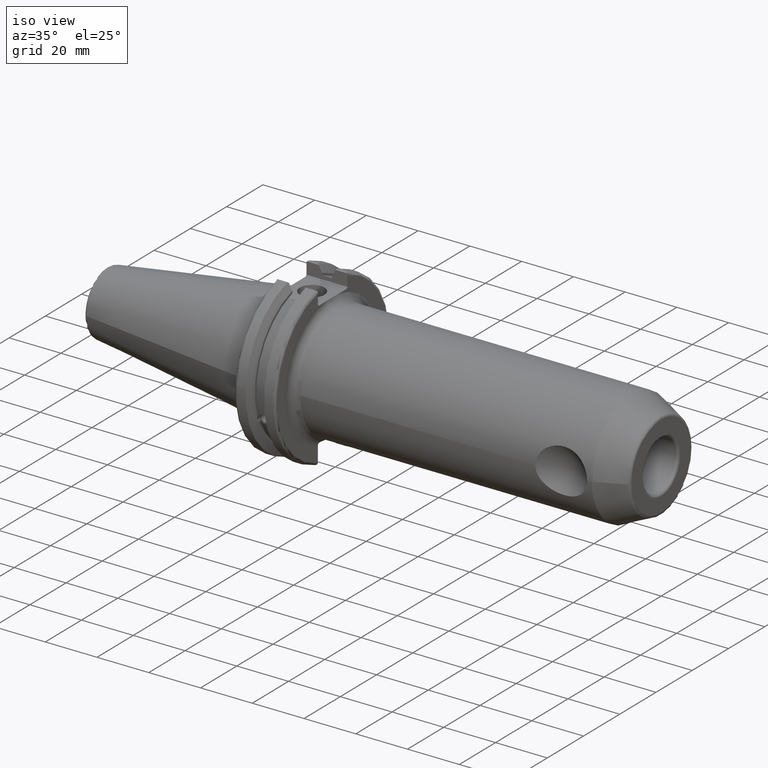
[diagram: clean part render]
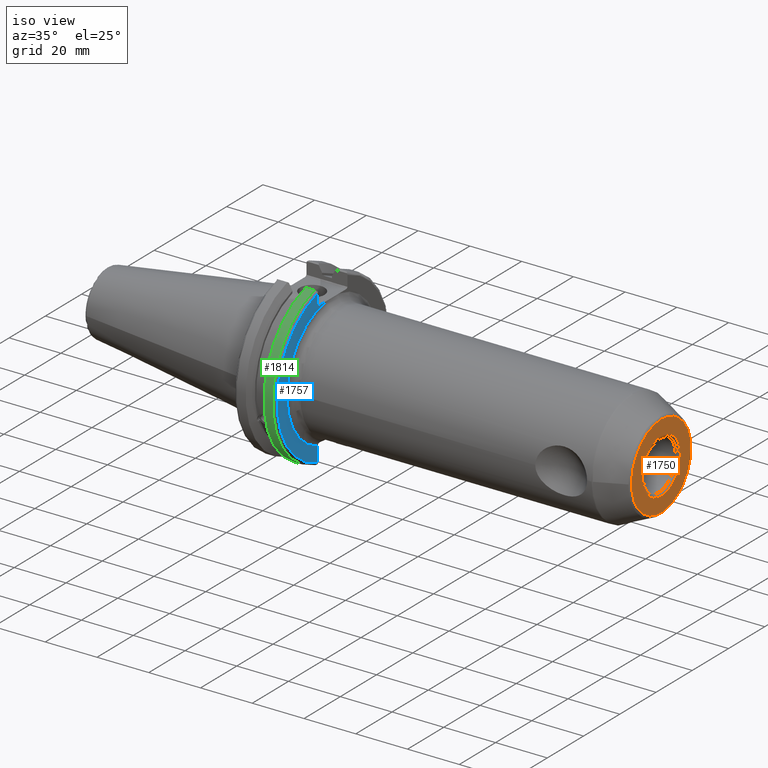
[diagram: same view with three faces highlighted in distinct colors, each labeled with its STEP entity id]
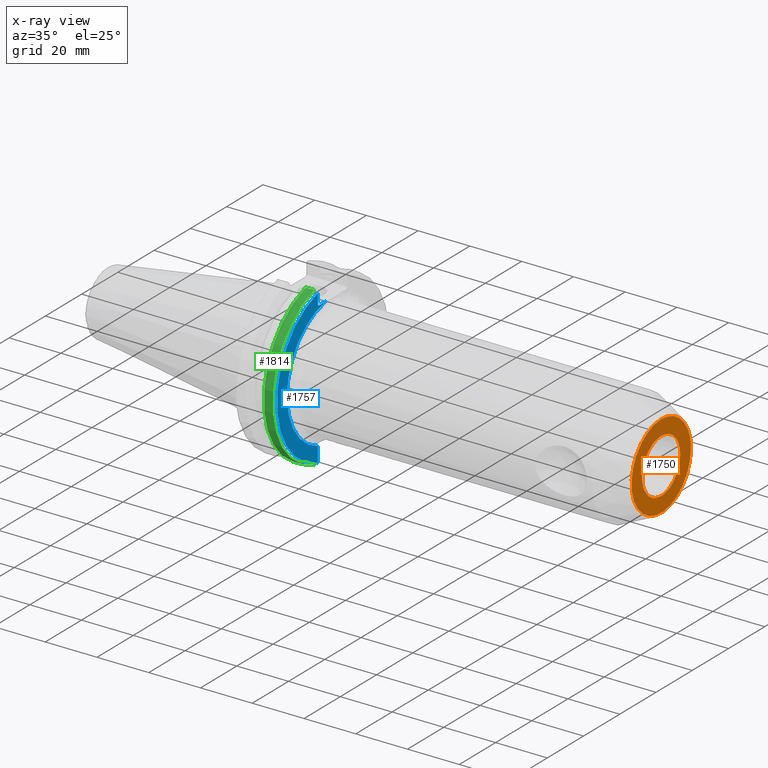
[diagram: x-ray of the same camera — body ghosted, the three highlighted faces saturated]
A machine part, iso view with three faces highlighted in distinct colors.
The next image is the same camera in x-ray (body ghosted, the three faces saturated) — at least one of them is partly hidden behind the body in this view.
Their STEP definitions:

[orange] entity #1750 — the highlighted planar face has unit normal (1, 0, 0).
#49=FACE_BOUND('',#550,.T.);
#307=CIRCLE('',#1870,10.525);
#308=CIRCLE('',#1871,10.525);
#310=CIRCLE('',#1874,16.3629297391925);
#311=CIRCLE('',#1875,16.3629297391925);
#414=PLANE('',#1873);
#458=FACE_OUTER_BOUND('',#549,.T.);
#549=EDGE_LOOP('',(#1207,#1208));
#550=EDGE_LOOP('',(#1209,#1210));
#709=VERTEX_POINT('',#2778);
#710=VERTEX_POINT('',#2780);
#711=VERTEX_POINT('',#2785);
#712=VERTEX_POINT('',#2786);
#912=EDGE_CURVE('',#709,#710,#307,.T.);
#913=EDGE_CURVE('',#710,#709,#308,.T.);
#915=EDGE_CURVE('',#711,#712,#310,.T.);
#916=EDGE_CURVE('',#712,#711,#311,.T.);
#1207=ORIENTED_EDGE('',*,*,#915,.F.);
#1208=ORIENTED_EDGE('',*,*,#916,.F.);
#1209=ORIENTED_EDGE('',*,*,#913,.F.);
#1210=ORIENTED_EDGE('',*,*,#912,.F.);
#1750=ADVANCED_FACE('',(#458,#49),#414,.T.);
#1870=AXIS2_PLACEMENT_3D('',#2781,#2112,#2113);
#1871=AXIS2_PLACEMENT_3D('',#2782,#2114,#2115);
#1873=AXIS2_PLACEMENT_3D('',#2784,#2118,#2119);
#1874=AXIS2_PLACEMENT_3D('',#2787,#2120,#2121);
#1875=AXIS2_PLACEMENT_3D('',#2788,#2122,#2123);
#2112=DIRECTION('center_axis',(1.,0.,0.));
#2113=DIRECTION('ref_axis',(0.,-1.,1.83697019872103E-16));
#2114=DIRECTION('center_axis',(1.,0.,0.));
#2115=DIRECTION('ref_axis',(0.,-1.,1.83697019872103E-16));
#2118=DIRECTION('center_axis',(1.,0.,0.));
#2119=DIRECTION('ref_axis',(0.,0.,-1.));
#2120=DIRECTION('center_axis',(-1.,0.,0.));
#2121=DIRECTION('ref_axis',(0.,-1.,1.83697019872103E-16));
#2122=DIRECTION('center_axis',(-1.,0.,0.));
#2123=DIRECTION('ref_axis',(0.,-1.,1.83697019872103E-16));
#2778=CARTESIAN_POINT('',(146.,-1.28894075610259E-15,10.525));
#2780=CARTESIAN_POINT('',(146.,10.525,-6.44470378051295E-16));
#2781=CARTESIAN_POINT('Origin',(146.,0.,0.));
#2782=CARTESIAN_POINT('Origin',(146.,0.,0.));
#2784=CARTESIAN_POINT('Origin',(146.,9.52500000000001,0.));
#2785=CARTESIAN_POINT('',(146.,16.3629297391925,-5.00970238244378E-15));
#2786=CARTESIAN_POINT('',(146.,-2.00388095297751E-15,16.3629297391925));
#2787=CARTESIAN_POINT('Origin',(146.,0.,0.));
#2788=CARTESIAN_POINT('Origin',(146.,0.,0.));

[blue] entity #1757 — the highlighted planar face has unit normal (1, 0, 0).
#94=LINE('',#2889,#185);
#95=LINE('',#2891,#186);
#96=LINE('',#2893,#187);
#97=LINE('',#2896,#188);
#185=VECTOR('',#2180,10.);
#186=VECTOR('',#2181,10.);
#187=VECTOR('',#2182,10.);
#188=VECTOR('',#2185,10.);
#330=CIRCLE('',#1900,25.225);
#331=CIRCLE('',#1902,30.75);
#415=PLANE('',#1901);
#465=FACE_OUTER_BOUND('',#559,.T.);
#559=EDGE_LOOP('',(#1272,#1273,#1274,#1275,#1276,#1277));
#732=VERTEX_POINT('',#2854);
#733=VERTEX_POINT('',#2865);
#736=VERTEX_POINT('',#2888);
#737=VERTEX_POINT('',#2890);
#738=VERTEX_POINT('',#2892);
#739=VERTEX_POINT('',#2894);
#943=EDGE_CURVE('',#732,#733,#330,.T.);
#947=EDGE_CURVE('',#732,#736,#94,.T.);
#948=EDGE_CURVE('',#737,#736,#95,.T.);
#949=EDGE_CURVE('',#737,#738,#96,.T.);
#950=EDGE_CURVE('',#739,#738,#331,.T.);
#951=EDGE_CURVE('',#739,#733,#97,.T.);
#1272=ORIENTED_EDGE('',*,*,#943,.F.);
#1273=ORIENTED_EDGE('',*,*,#947,.T.);
#1274=ORIENTED_EDGE('',*,*,#948,.F.);
#1275=ORIENTED_EDGE('',*,*,#949,.T.);
#1276=ORIENTED_EDGE('',*,*,#950,.F.);
#1277=ORIENTED_EDGE('',*,*,#951,.T.);
#1757=ADVANCED_FACE('',(#465),#415,.T.);
#1900=AXIS2_PLACEMENT_3D('',#2866,#2176,#2177);
#1901=AXIS2_PLACEMENT_3D('',#2887,#2178,#2179);
#1902=AXIS2_PLACEMENT_3D('',#2895,#2183,#2184);
#2176=DIRECTION('center_axis',(1.,0.,0.));
#2177=DIRECTION('ref_axis',(0.,-1.,-1.22464679914735E-16));
#2178=DIRECTION('center_axis',(1.,0.,0.));
#2179=DIRECTION('ref_axis',(0.,0.,-1.));
#2180=DIRECTION('',(0.,-1.,0.));
#2181=DIRECTION('',(0.,0.70710678118655,-0.707106781186545));
#2182=DIRECTION('',(0.,0.,1.));
#2183=DIRECTION('center_axis',(-1.,0.,0.));
#2184=DIRECTION('ref_axis',(0.,-1.,1.60812264967664E-16));
#2185=DIRECTION('',(0.,0.,1.));
#2854=CARTESIAN_POINT('',(19.05,-3.36164022465224,25.));
#2865=CARTESIAN_POINT('',(19.05,-8.19,-23.858426708398));
#2866=CARTESIAN_POINT('Origin',(19.05,0.,0.));
#2887=CARTESIAN_POINT('Origin',(19.05,0.,0.));
#2888=CARTESIAN_POINT('',(19.05,-7.69,25.));
#2889=CARTESIAN_POINT('',(19.05,0.,25.));
#2890=CARTESIAN_POINT('',(19.05,-8.19,25.5));
#2891=CARTESIAN_POINT('',(19.05,0.357500000000014,16.9525));
#2892=CARTESIAN_POINT('',(19.05,-8.19,29.6392712461019));
#2893=CARTESIAN_POINT('',(19.05,-8.19,12.5));
#2894=CARTESIAN_POINT('',(19.05,-8.19,-29.6392712461019));
#2895=CARTESIAN_POINT('Origin',(19.05,0.,0.));
#2896=CARTESIAN_POINT('',(19.05,-8.19,-11.3));

[green] entity #1814 — the highlighted cylindrical surface (partial cylindrical patch) has radius 31.75 mm, axis along (1, 0, 0).
#170=LINE('',#3599,#261);
#171=LINE('',#3601,#262);
#261=VECTOR('',#2536,10.);
#262=VECTOR('',#2539,10.);
#291=CYLINDRICAL_SURFACE('',#2042,31.75);
#349=CIRCLE('',#1942,31.75);
#383=CIRCLE('',#2010,31.75);
#522=FACE_OUTER_BOUND('',#628,.T.);
#628=EDGE_LOOP('',(#1639,#1640,#1641,#1642));
#777=VERTEX_POINT('',#3083);
#778=VERTEX_POINT('',#3087);
#855=VERTEX_POINT('',#3434);
#856=VERTEX_POINT('',#3443);
#999=EDGE_CURVE('',#778,#777,#349,.T.);
#1102=EDGE_CURVE('',#855,#856,#383,.T.);
#1152=EDGE_CURVE('',#856,#777,#170,.T.);
#1153=EDGE_CURVE('',#778,#855,#171,.T.);
#1639=ORIENTED_EDGE('',*,*,#1102,.F.);
#1640=ORIENTED_EDGE('',*,*,#1153,.F.);
#1641=ORIENTED_EDGE('',*,*,#999,.T.);
#1642=ORIENTED_EDGE('',*,*,#1152,.F.);
#1814=ADVANCED_FACE('',(#522),#291,.T.);
#1942=AXIS2_PLACEMENT_3D('',#3088,#2276,#2277);
#2010=AXIS2_PLACEMENT_3D('',#3444,#2449,#2450);
#2042=AXIS2_PLACEMENT_3D('',#3600,#2537,#2538);
#2276=DIRECTION('center_axis',(1.,0.,0.));
#2277=DIRECTION('ref_axis',(0.,0.,-1.));
#2449=DIRECTION('center_axis',(1.,0.,0.));
#2450=DIRECTION('ref_axis',(0.,-1.,1.60812264967664E-16));
#2536=DIRECTION('',(-1.,0.,0.));
#2537=DIRECTION('center_axis',(1.,0.,0.));
#2538=DIRECTION('ref_axis',(0.,-1.,1.22464679914735E-16));
#2539=DIRECTION('',(1.,0.,0.));
#3083=CARTESIAN_POINT('',(14.6602667690756,-8.67204822802686,-30.5427254764662));
#3087=CARTESIAN_POINT('',(14.6602667690756,-8.67204822802685,30.5427254764662));
#3088=CARTESIAN_POINT('Origin',(14.6602667690756,0.,0.));
#3434=CARTESIAN_POINT('',(18.05,-8.67204822802685,30.5427254764662));
#3443=CARTESIAN_POINT('',(18.05,-8.67204822802686,-30.5427254764662));
#3444=CARTESIAN_POINT('Origin',(18.05,0.,0.));
#3599=CARTESIAN_POINT('',(16.8551333845378,-8.67204822802686,-30.5427254764662));
#3600=CARTESIAN_POINT('Origin',(16.8551333845378,0.,0.));
#3601=CARTESIAN_POINT('',(16.8551333845378,-8.67204822802685,30.5427254764662));